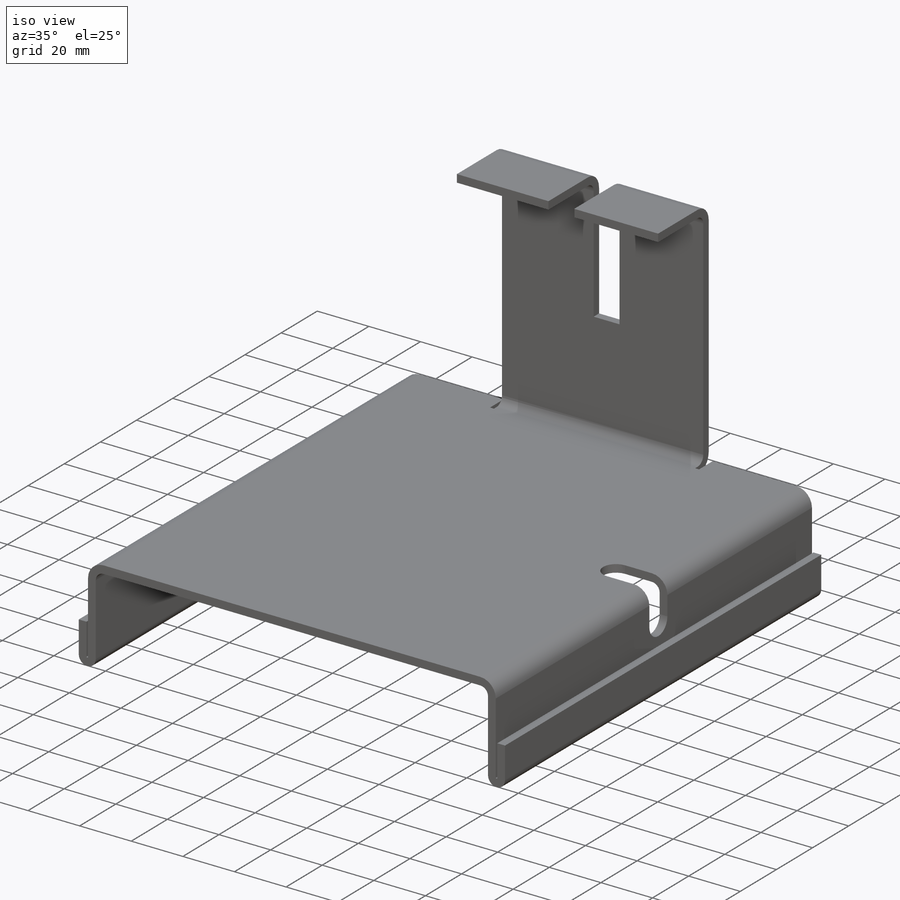
[diagram: iso view]
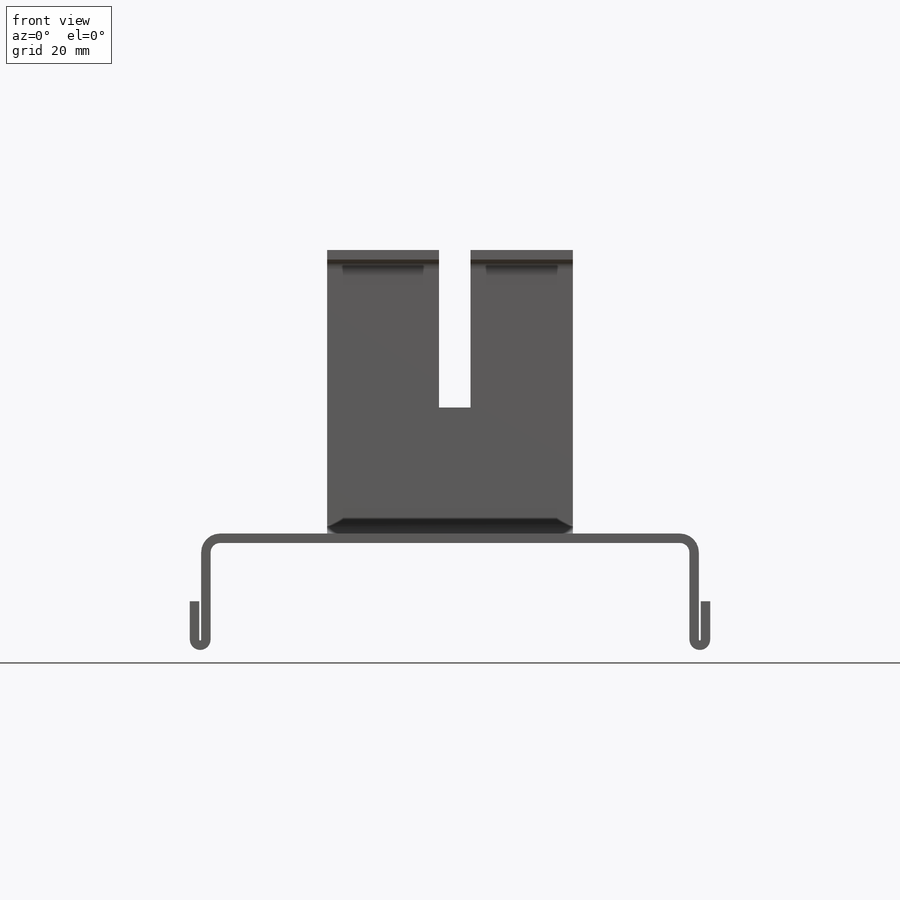
[diagram: front view]
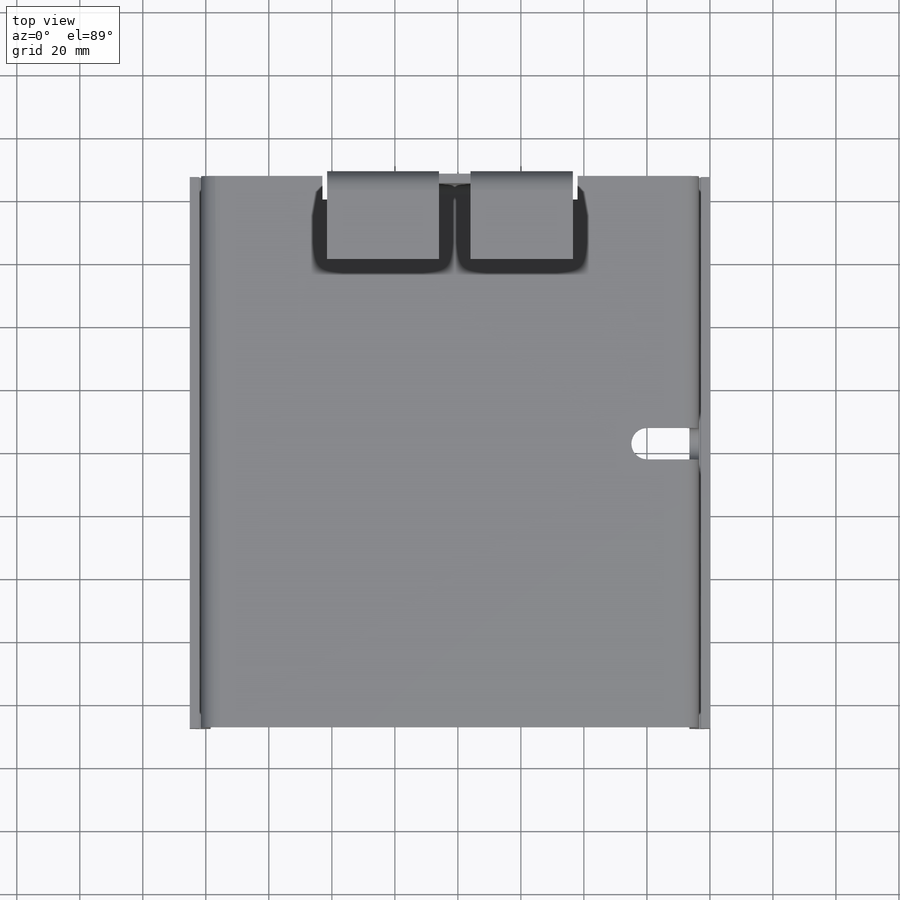
[diagram: top view]
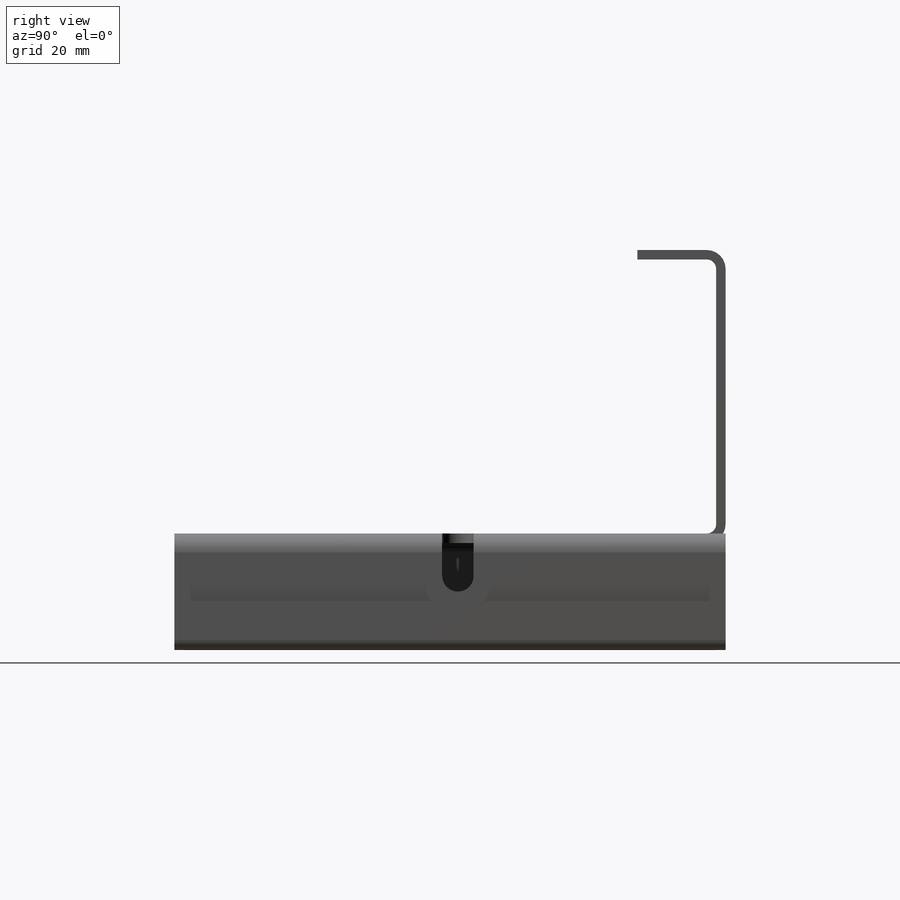
[diagram: right view]
SOLIDWORKS PART (.sldprt)
format: sldprt  version: not decoded by parser v0  size: 717,824 bytes
history: native  units: mm
features: sketch x8, plane x3, cut_extrude x2, material x1, sheet_metal_op x1 + 8 further entries (+13 scaffold rows collapsed)
feature tree (36):
  scaffold x13  (default folders/planes/origin — collapsed)
  material  "Material <sin especificar>"
  plane  "Alzado"
  plane  "Planta"
  plane  "Vista lateral"
  sketch  "Croquis1"  dims[c1.D1=50.0mm c1.D2=155.0mm c2.D1=175.0mm c2.Espesor=3.0mm c2.D6=1.0mm c2.D7=5.0mm]
  sketch  "Croquis3"  dims[c1.D1=40.0mm c1.D2=40.0mm c2.D1=90.0mm c2.D6=10.0mm c2.D7=5.0mm]
  sketch  "Croquis4"  dims[D1=25.0mm D6=10.0mm D7=5.0mm]
  sketch  "Croquis5"  dims[c1.D1=32.5mm c1.D2=10.0mm c1.D3=10.0mm c2.D1=32.5mm c2.D2=10.0mm]
  cut_extrude  "Cortar-Extruir1"  Depth=50mm
  sheet_metal_op  "Chapa metálica1"
  sketch  "Croquis de arista viva1"  dims[c1.Pliegue de arista viva1=0.0 c1.D1=0.0mm c1.D4=90.0deg c1.D5=5.0 c1.D8=1.5mm c1.D9=1.5mm c1.Pliegue de arista viva2=0.0 c2.D1=0.0mm c2.D4=90.0deg c2.D5=4.0 c2.D8=1.5mm c2.D9=1.5mm c2.Pliegue de arista viva3=0.0 c3.D1=0.0mm c3.D4=90.0deg c3.D5=3.0 c3.D8=1.5mm c3.D9=1.5mm c3.Pliegue de arista viva4=0.0 c4.D1=0.0mm c4.D4=90.0deg c4.D5=2.0 c4.D8=1.5mm c4.D9=1.5mm c5.D1=0.0mm]
  sketch  "Croquis13"  dims[c1.D1=10.0mm c1.D2=25.0mm c1.D3=38.0mm c1.D4=87.5mm c2.D1=10.0mm c2.D2=80.0mm c2.D3=25.0mm c2.D4=38.0mm]
  cut_extrude  "Cortar-Extruir3"  [1 undecoded]
  sketch  "Croquis desplegado1"  dims[c1.D1=15.0mm c1.D2=15.0mm c1.Pliegue desplegado1=0.0 c2.D1=0.3mm c2.D2=500.0mm c2.D3=0.0mm c2.D4=180.0deg c2.D5=6.0 c2.D8=1.5mm c2.D9=1.5mm c2.Pliegue desplegado2=0.0 c3.D1=0.3mm c3.D2=500.0mm c3.D3=0.0mm c3.D4=180.0deg c3.D5=7.0 c3.D8=1.5mm c3.D9=1.5mm c4.D1=0.0mm]
  "Chapa desplegada1"
  sketch  "Líneas de pliegue1"
  "Aplanar-<Pliegue de arista viva2>1"
  "Aplanar-<Pliegue de arista viva3>1"
  "Aplanar-<Pliegue de arista viva4>1"
  "Aplanar-<Pliegue de arista viva5>1"
  "Aplanar-<Pliegue desplegado1>1"
  "Aplanar-<Pliegue desplegado2>1"
  "Transformación de croquis1"
decode coverage: 8 of 11 modeling features carry decoded parameters; 8 rows unclassified (native names shown)
note: 1 parameter value undecoded
note: suppression state not decoded; provenance and decode notes live in map.json
